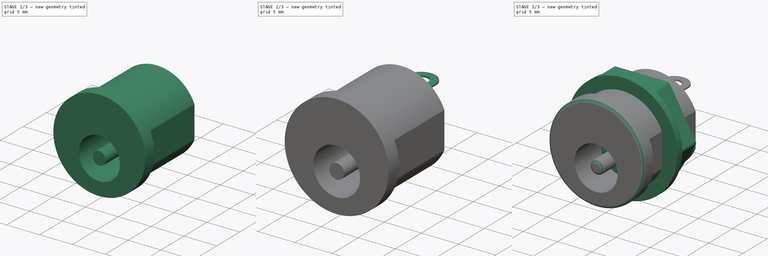
[diagram: build sequence overview — one tinted view per stage of 3, left to right]
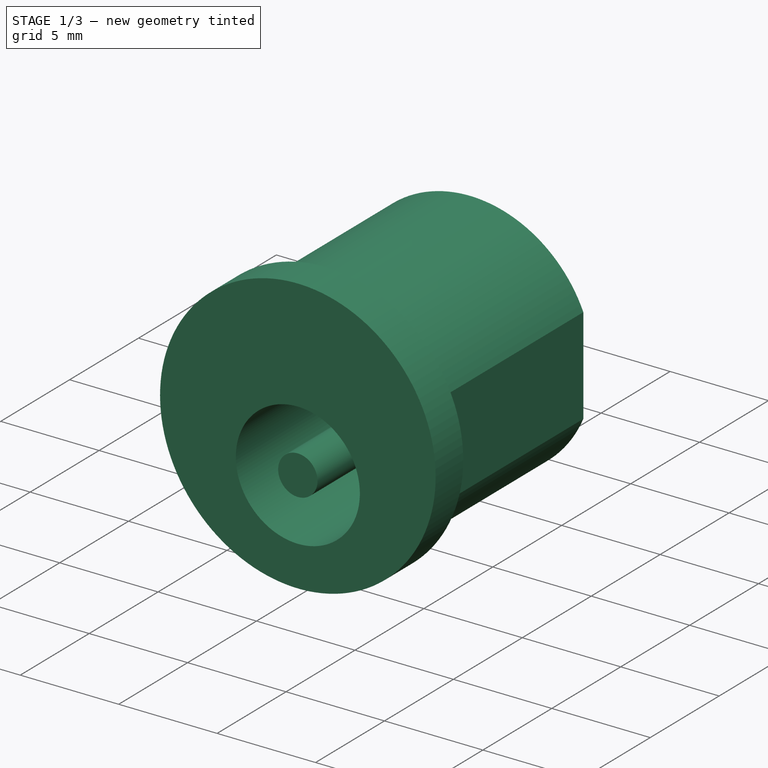
[diagram: stage 1 of 3 — iso view after this stage's code; geometry added in this stage tinted green]
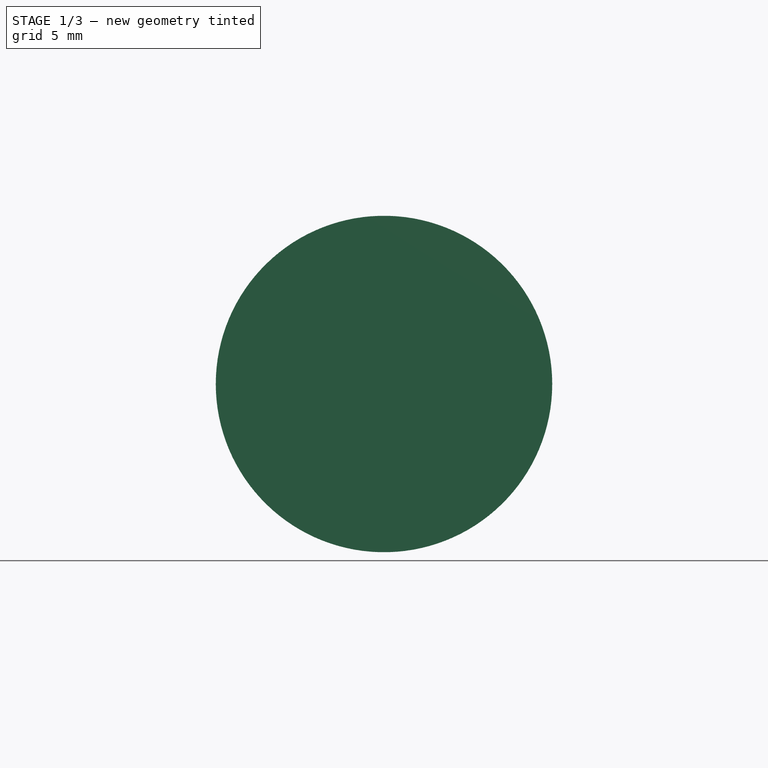
[diagram: stage 1 of 3 — front view after this stage's code; geometry added in this stage tinted green]
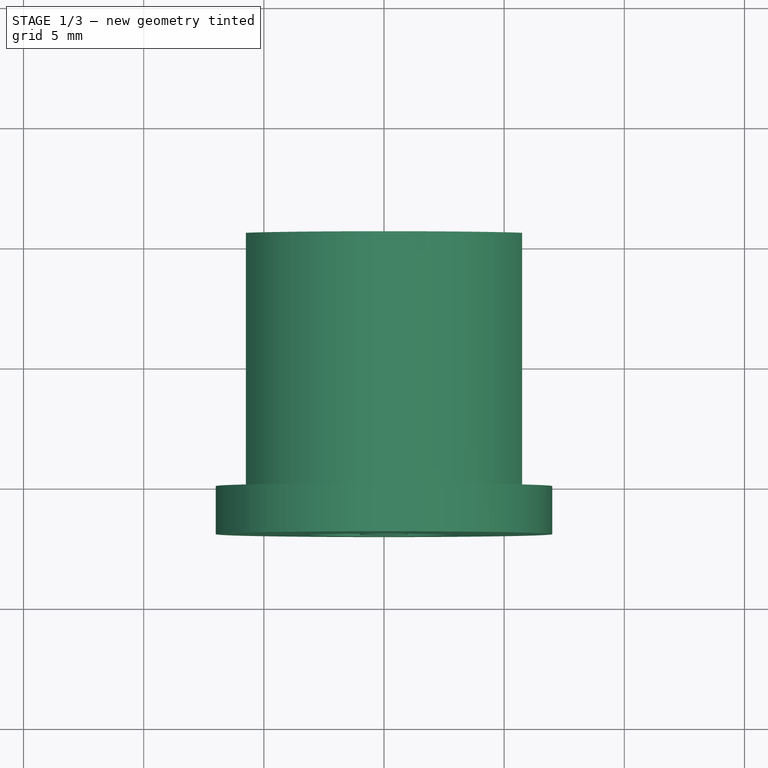
[diagram: stage 1 of 3 — top view after this stage's code; geometry added in this stage tinted green]
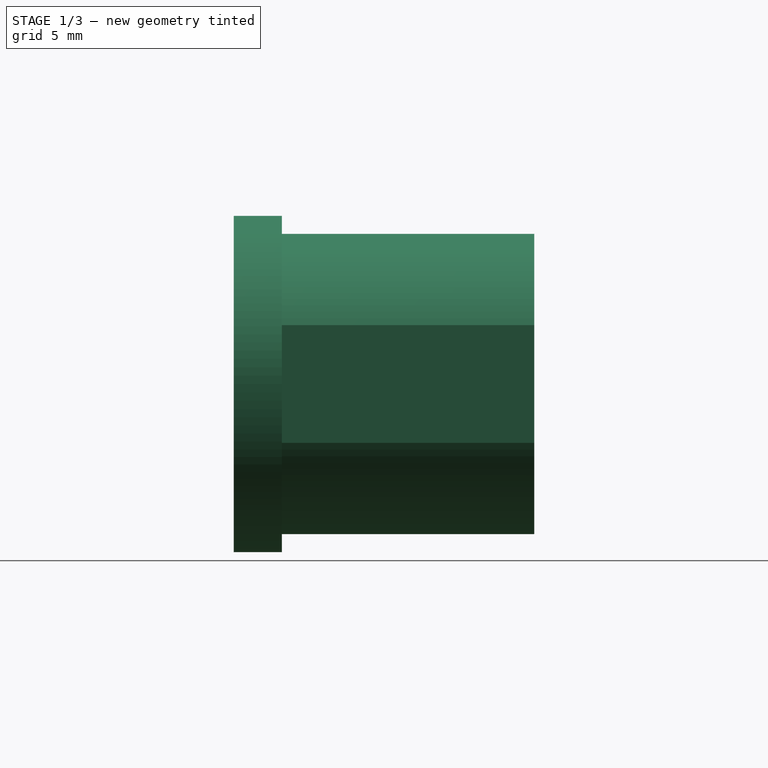
[diagram: stage 1 of 3 — right view after this stage's code; geometry added in this stage tinted green]
FCSTD DOCUMENT  (FreeCAD 0.18R4 (GitTag))
Label: DC Power Jack geschraubt
License: All rights reserved
LicenseURL: http://en.wikipedia.org/wiki/All_rights_reserved
objects: Sketcher::SketchObject×6, PartDesign::Pad×5, PartDesign::CoordinateSystem×1, PartDesign::Pocket×1, PartDesign::LinearPattern×1, PartDesign::Plane×1, PartDesign::Fillet×1, PartDesign::Body×1
note: 23 computed .brp shape members not serialized (recipe doc carries the construction recipe); baked Part::Feature solids carry a one-line shape summary decoded from their .brp

FEATURE [Sketcher::SketchObject] Sketch
  MapMode = 5
  Placement = pos=(0,0,0) rot=(1,0,0;1.5708rad)
  Support = -> [XZ_Plane]
  sketch-geometry (4):
    g0: LineSegment StartX=5.75 StartY=-2.44949 StartZ=0 EndX=5.75 EndY=2.44949 EndZ=0
    g1: ArcOfCircle CenterX=0 CenterY=0 CenterZ=0 NormalX=0 NormalY=0 NormalZ=1 AngleXU=0 Radius=6.25 StartAngle=0.402716 EndAngle=2.73888
    g2: LineSegment StartX=-5.75 StartY=2.44949 StartZ=0 EndX=-5.75 EndY=-2.44949 EndZ=0
    g3: ArcOfCircle CenterX=0 CenterY=0 CenterZ=0 NormalX=0 NormalY=0 NormalZ=1 AngleXU=0 Radius=6.25 StartAngle=3.54431 EndAngle=5.88047
  constraints (11):
    c: Coincident(g3,g0)
    c: Coincident(g3,g1)
    c: Coincident(g3,g-1)
    c: Coincident(g2,g3)
    c: Coincident(g1,g0)
    c: Vertical(g2)
    c: Vertical(g0)
    c: Coincident(g1,g2)
    c: Symmetric(g0,g2,g1)
    c: Radius(g1) = 6.25
    c: DistanceX(g1,g0) = 11.5
FEATURE [PartDesign::Pad] Pad  label="Zylinder"
  Length = 10.5
  Length2 = 100
  Placement = pos=(0,0,0) rot=(1,0,0;1.5708rad)
  Profile = -> Sketch
  Reversed = true
  Type = 0
FEATURE [PartDesign::CoordinateSystem] Local_CS
  AttacherType = Attacher::AttachEngine3D
  MapMode = 5
  Placement = pos=(0,0,0) rot=(1,0,0;1.5708rad)
  Support = -> [Pad]
FEATURE [Sketcher::SketchObject] Sketch001
  MapMode = 5
  Placement = pos=(0,0,0) rot=(1,0,0;1.5708rad)
  Support = -> [Pad]
  sketch-geometry (1):
    g0: Circle CenterX=0 CenterY=0 CenterZ=0 NormalX=0 NormalY=0 NormalZ=1 AngleXU=0 Radius=7
  constraints (2):
    c: Radius(g0) = 7
    c: Coincident(g0,g-1)
FEATURE [PartDesign::Pad] Pad001  label="Front"
  BaseFeature = -> Pad
  Length = 2
  Length2 = 100
  Placement = pos=(0,0,0) rot=(1,0,0;1.5708rad)
  Profile = -> Sketch001
  Type = 0
FEATURE [Sketcher::SketchObject] Sketch002
  MapMode = 5
  Placement = pos=(0,-2,2e-15) rot=(1,0,0;1.5708rad)
  Support = -> [Pad001]
  sketch-geometry (2):
    g0: Circle CenterX=0 CenterY=-1.8 CenterZ=0 NormalX=0 NormalY=0 NormalZ=1 AngleXU=0 Radius=1
    g1: Circle CenterX=0 CenterY=-1.8 CenterZ=0 NormalX=0 NormalY=0 NormalZ=1 AngleXU=0 Radius=3.15
  constraints (5):
    c: Radius(g0) = 1
    c: Radius(g1) = 3.15
    c: Coincident(g0,g1)
    c: PointOnObject(g0,g-2)
    c: DistanceY(g0,g-1) = 1.8
FEATURE [PartDesign::Pocket] Pocket
  BaseFeature = -> Pad001
  Length = 10
  Length2 = 100
  Placement = pos=(0,0,0) rot=(1,0,0;1.5708rad)
  Profile = -> Sketch002
  Type = 0
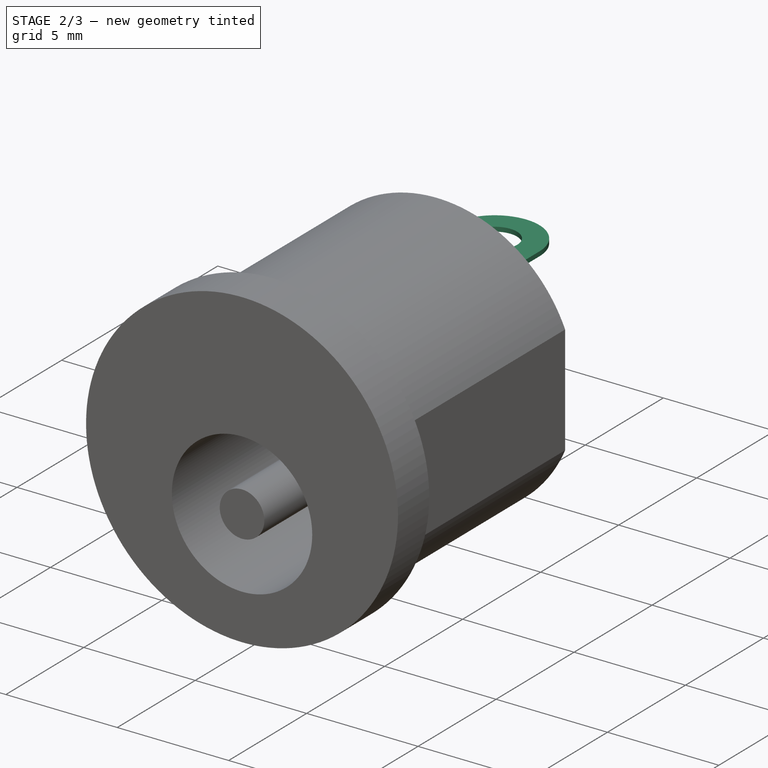
[diagram: stage 2 of 3 — iso view after this stage's code; geometry added in this stage tinted green]
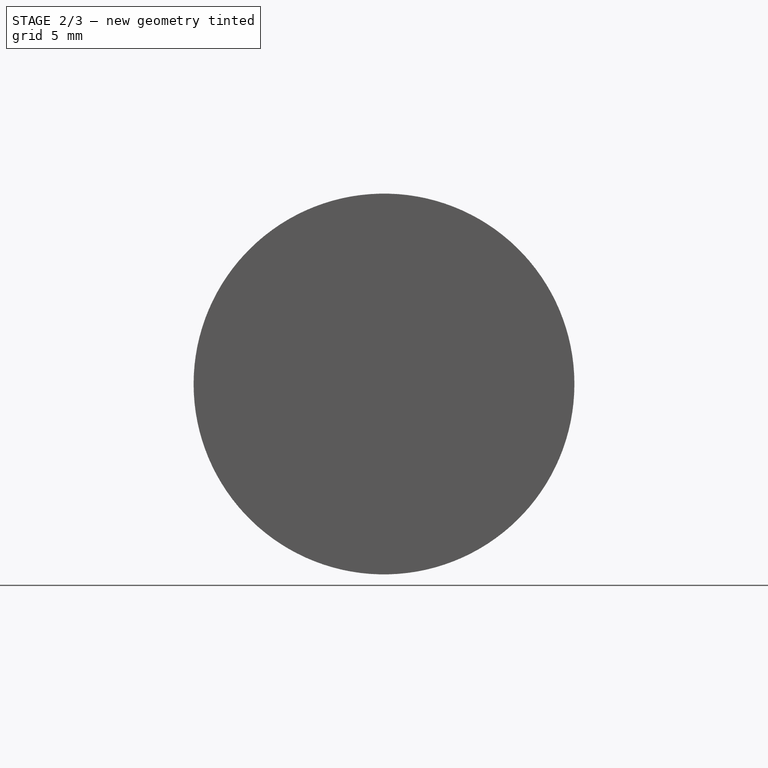
[diagram: stage 2 of 3 — front view after this stage's code; geometry added in this stage tinted green]
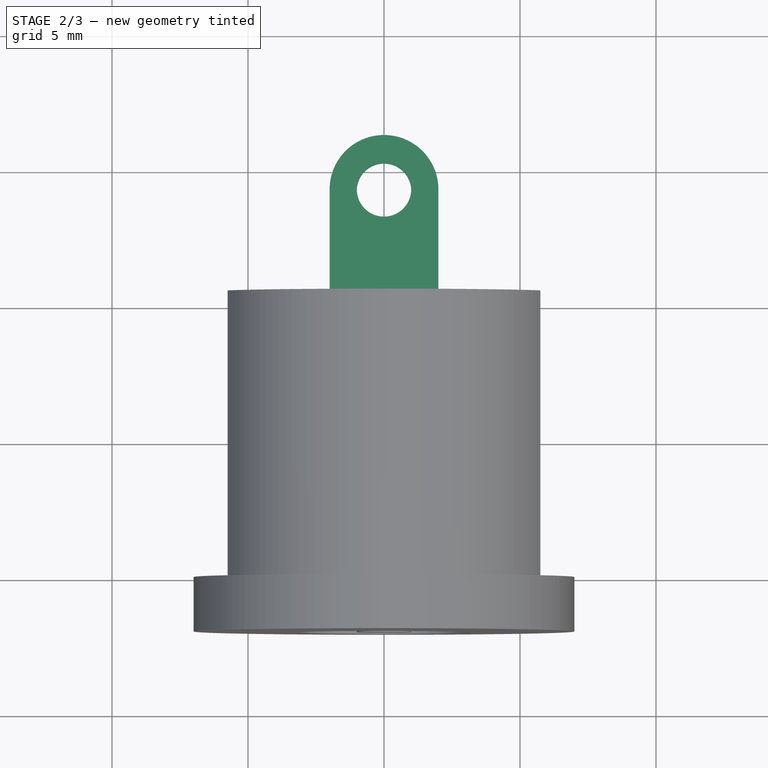
[diagram: stage 2 of 3 — top view after this stage's code; geometry added in this stage tinted green]
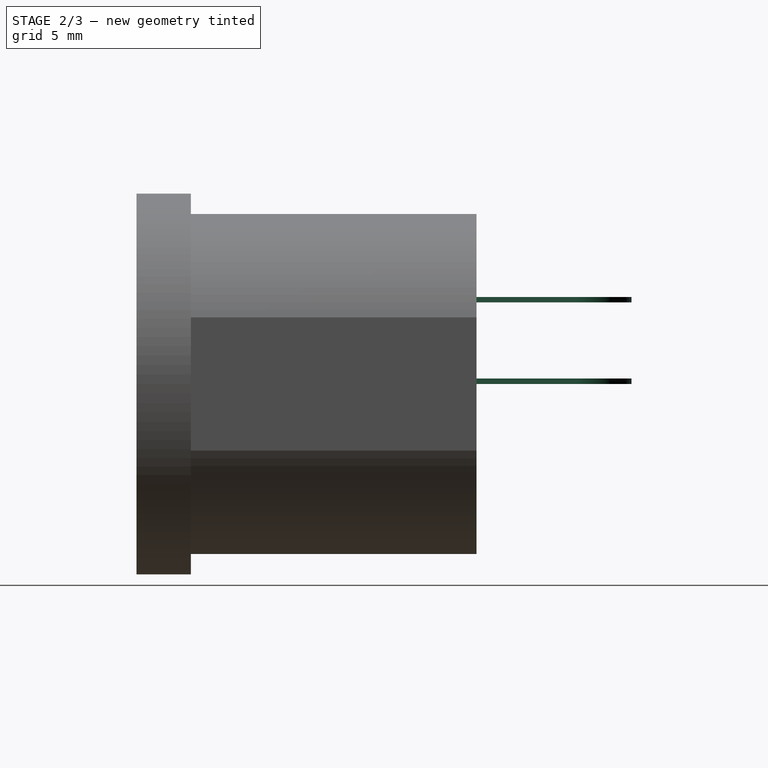
[diagram: stage 2 of 3 — right view after this stage's code; geometry added in this stage tinted green]
FEATURE [Sketcher::SketchObject] Sketch004
  MapMode = 5
  Support = -> [XY_Plane]
  sketch-geometry (6):
    g0: LineSegment StartX=-2 StartY=10.5 StartZ=0 EndX=-2 EndY=14.2 EndZ=0
    g1: ArcOfCircle CenterX=0 CenterY=14.2 CenterZ=0 NormalX=0 NormalY=0 NormalZ=1 AngleXU=0 Radius=2 StartAngle=1.5708 EndAngle=3.14159
    g2: ArcOfCircle CenterX=0 CenterY=14.2 CenterZ=0 NormalX=0 NormalY=0 NormalZ=1 AngleXU=0 Radius=2 StartAngle=1.2839e-12 EndAngle=1.5708
    g3: LineSegment StartX=2 StartY=14.2 StartZ=0 EndX=2 EndY=10.5 EndZ=0
    g4: LineSegment StartX=2 StartY=10.5 StartZ=0 EndX=-2 EndY=10.5 EndZ=0
    g5: Circle CenterX=0 CenterY=14.2 CenterZ=0 NormalX=0 NormalY=0 NormalZ=1 AngleXU=0 Radius=1
  constraints (17):
    c: Tangent(g0,g1) = 1.5708
    c: Tangent(g1,g2) = -1.5708
    c: Coincident(g3,g4)
    c: Coincident(g4,g0)
    c: Coincident(g1,g2)
    c: PointOnObject(g1,g-2)
    c: Vertical(g0)
    c: Vertical(g3)
    c: Horizontal(g4)
    c: PointOnObject(g1,g-2)
    c: DistanceY(g3,g1) = 5.7
    c: DistanceY(g-1,g3) = 10.5
    c: DistanceX(g4,g4) = 4
    c: Coincident(g5,g1)
    c: Radius(g5) = 1
    c: Coincident(g2,g3)
    c: Horizontal(g2,g0)
FEATURE [PartDesign::Pad] Pad002  label="Lötöse"
  BaseFeature = -> Pocket
  Length = 0.2
  Length2 = 100
  Placement = pos=(0,0,0) rot=(1,0,0;1.5708rad)
  Profile = -> Sketch004
  Type = 0
FEATURE [PartDesign::LinearPattern] LinearPattern
  BaseFeature = -> Pad002
  Direction = -> Sketch004 [N_Axis]
  Length = 3
  Occurrences = 2
  Originals = -> [Pad002]
  Placement = pos=(0,0,0) rot=(1,0,0;1.5708rad)
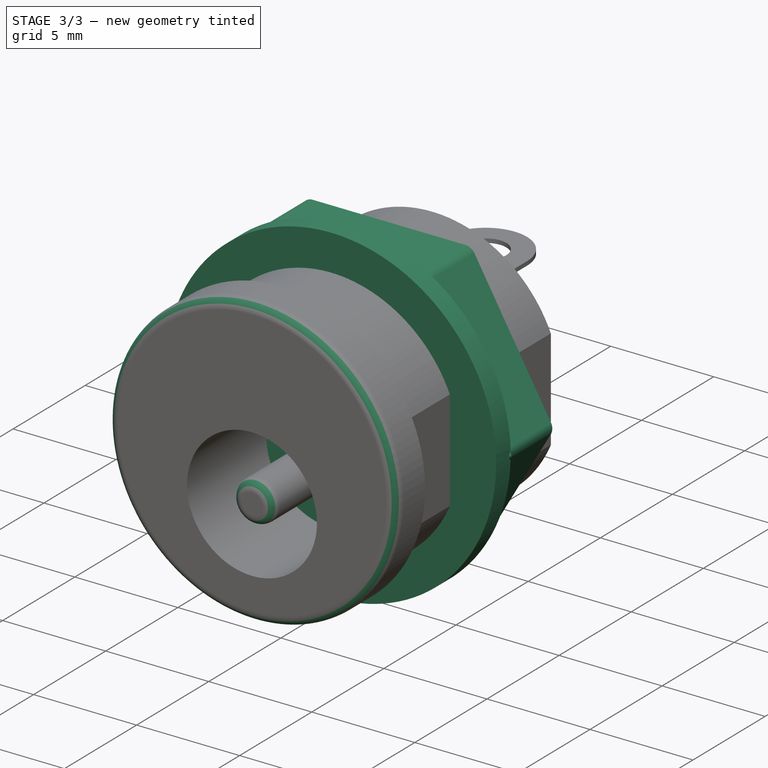
[diagram: stage 3 of 3 — iso view after this stage's code; geometry added in this stage tinted green]
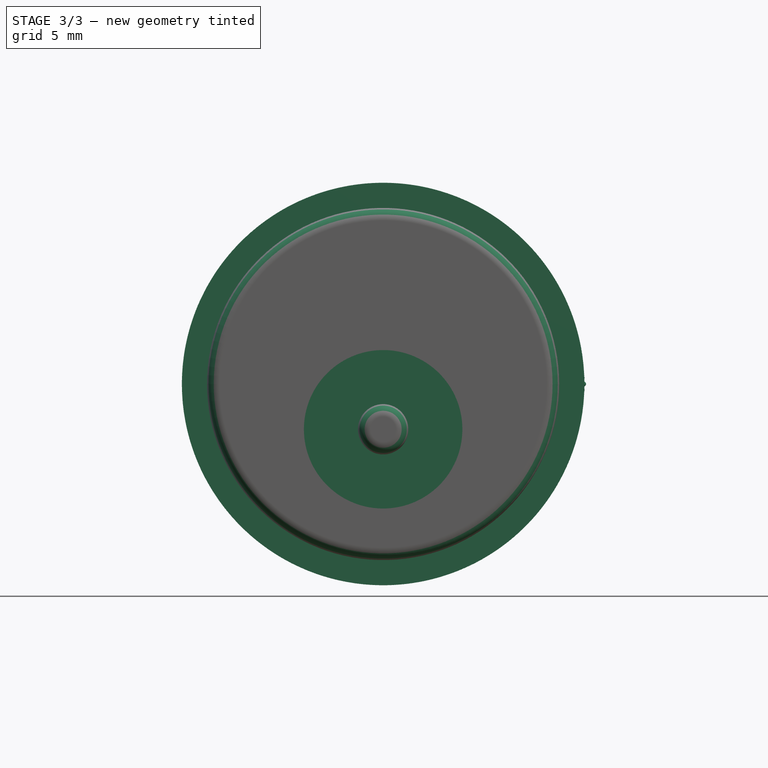
[diagram: stage 3 of 3 — front view after this stage's code; geometry added in this stage tinted green]
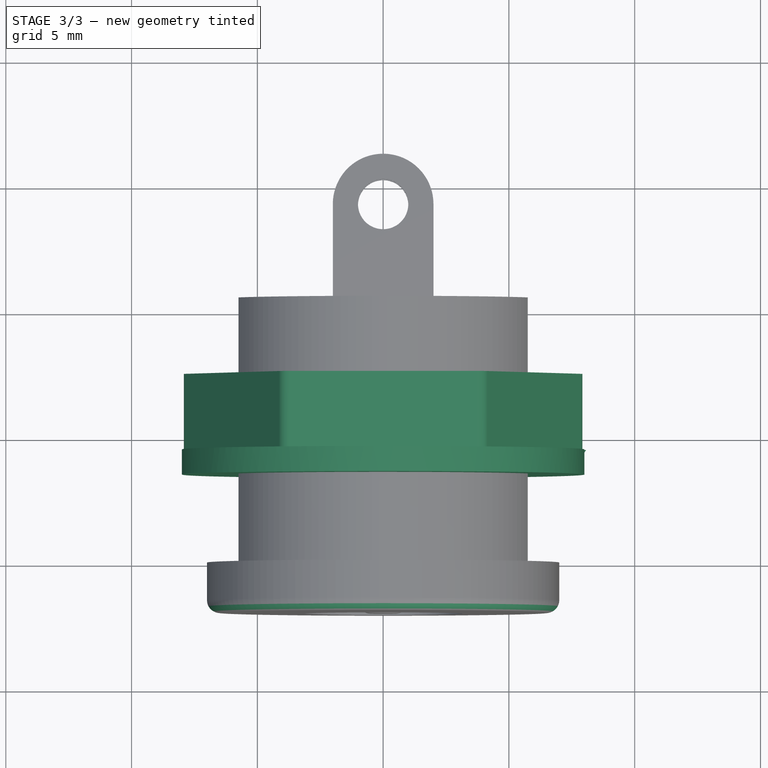
[diagram: stage 3 of 3 — top view after this stage's code; geometry added in this stage tinted green]
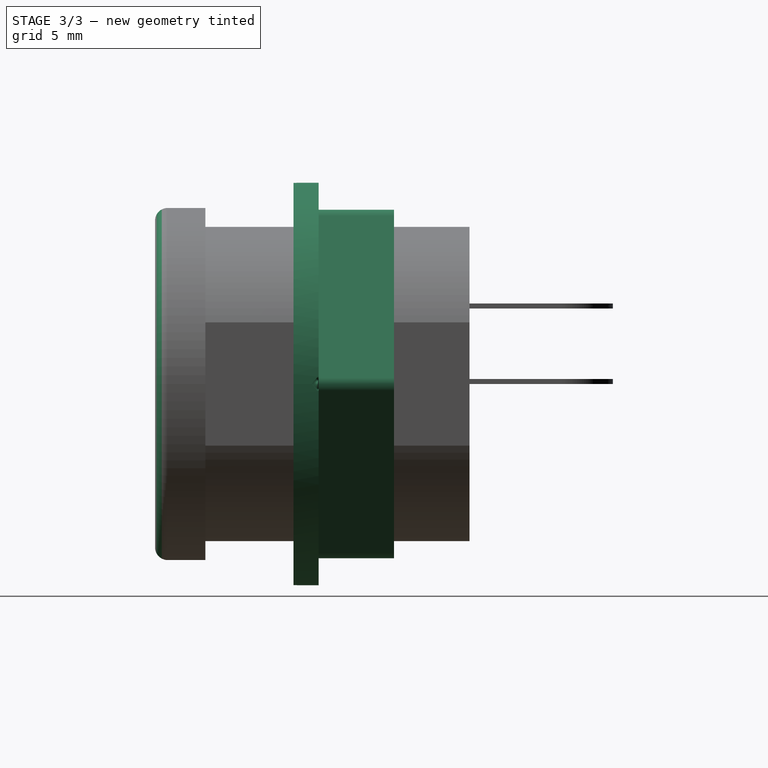
[diagram: stage 3 of 3 — right view after this stage's code; geometry added in this stage tinted green]
FEATURE [PartDesign::Plane] DatumPlane
  AttachmentOffset = pos=(0,0,-3) rot=(0,0,1;0rad)
  Length = 24
  MapMode = 5
  Placement = pos=(0,7.5,-4.8e-15) rot=(-1,0,0;1.5708rad)
  ResizeMode = 0
  Support = -> [LinearPattern]
  Width = 24
FEATURE [Sketcher::SketchObject] Sketch005
  MapMode = 5
  Placement = pos=(0,7.5,-4.8e-15) rot=(-1,0,0;1.5708rad)
  Support = -> [DatumPlane]
  expr: Constraints[18] = 12.5 / 2
  sketch-geometry (8):
    g0: Circle CenterX=0 CenterY=0 CenterZ=0 NormalX=0 NormalY=0 NormalZ=1 AngleXU=0 Radius=6.25
    g1: LineSegment StartX=4 StartY=-6.9282 StartZ=0 EndX=8 EndY=-1.13731e-11 EndZ=0
    g2: LineSegment StartX=8 StartY=-1.13731e-11 StartZ=0 EndX=4 EndY=6.9282 EndZ=0
    g3: LineSegment StartX=4 StartY=6.9282 StartZ=0 EndX=-4 EndY=6.9282 EndZ=0
    g4: LineSegment StartX=-4 StartY=6.9282 StartZ=0 EndX=-8 EndY=-6.7004e-12 EndZ=0
    g5: LineSegment StartX=-8 StartY=-6.7005e-12 StartZ=0 EndX=-4 EndY=-6.9282 EndZ=0
    g6: LineSegment StartX=-4 StartY=-6.9282 StartZ=0 EndX=4 EndY=-6.9282 EndZ=0
    g7: Circle [constr] CenterX=0 CenterY=0 CenterZ=0 NormalX=0 NormalY=0 NormalZ=1 AngleXU=0 Radius=8
  constraints (18):
    c: Coincident(g1,g2)
    c: Coincident(g2,g3)
    c: Coincident(g3,g4)
    c: Coincident(g4,g5)
    c: Coincident(g5,g6)
    c: Coincident(g6,g1)
    c: Equal(g1, g2-g6) x5
    c: PointOnObject(g1,g7)
    c: PointOnObject(g2,g7)
    c: PointOnObject(g3,g7)
    c: PointOnObject(g4,g7)
    c: PointOnObject(g5,g7)
    c: PointOnObject(g6,g7)
    c: Radius(g7) = 8
    c: Radius(g0) = 6.25
    c: Coincident(g7,g0)
    c: Coincident(g7,g-1)
    c: Horizontal(g6)
FEATURE [PartDesign::Pad] Pad003  label="Mutter"
  BaseFeature = -> LinearPattern
  Length = 3
  Length2 = 100
  Placement = pos=(0,0,0) rot=(1,0,0;1.5708rad)
  Profile = -> Sketch005
  Reversed = true
  Type = 0
FEATURE [Sketcher::SketchObject] Sketch006
  MapMode = 5
  Placement = pos=(0,4.5,-3.4e-15) rot=(1,0,0;1.5708rad)
  Support = -> [Pad003]
  sketch-geometry (1):
    g0: Circle CenterX=0 CenterY=0 CenterZ=0 NormalX=0 NormalY=0 NormalZ=1 AngleXU=0 Radius=8
  constraints (2):
    c: Coincident(g0,g-1)
    c: Radius(g0) = 8
FEATURE [PartDesign::Pad] Pad004  label="Auflage"
  BaseFeature = -> Pad003
  Length = 1
  Length2 = 100
  Placement = pos=(0,0,0) rot=(1,0,0;1.5708rad)
  Profile = -> Sketch006
  Type = 0
FEATURE [PartDesign::Fillet] Fillet
  Base = -> Pad004 [Edge28,Edge3,Edge36,Edge37,Edge39,Edge45,Edge43,Edge41]
  BaseFeature = -> Pad004
  Placement = pos=(0,0,0) rot=(1,0,0;1.5708rad)
  Radius = 0.5
FEATURE [PartDesign::Body] Body  label="DC Power Jack"
  Group = -> [Sketch,Pad,Local_CS,Sketch001,Pad001,Sketch002,Pocket,Sketch004,Pad002,LinearPattern,DatumPlane,Sketch005,Pad003,Sketch006,Pad004,Fillet]
  Origin = -> Origin
  Tip = -> Fillet
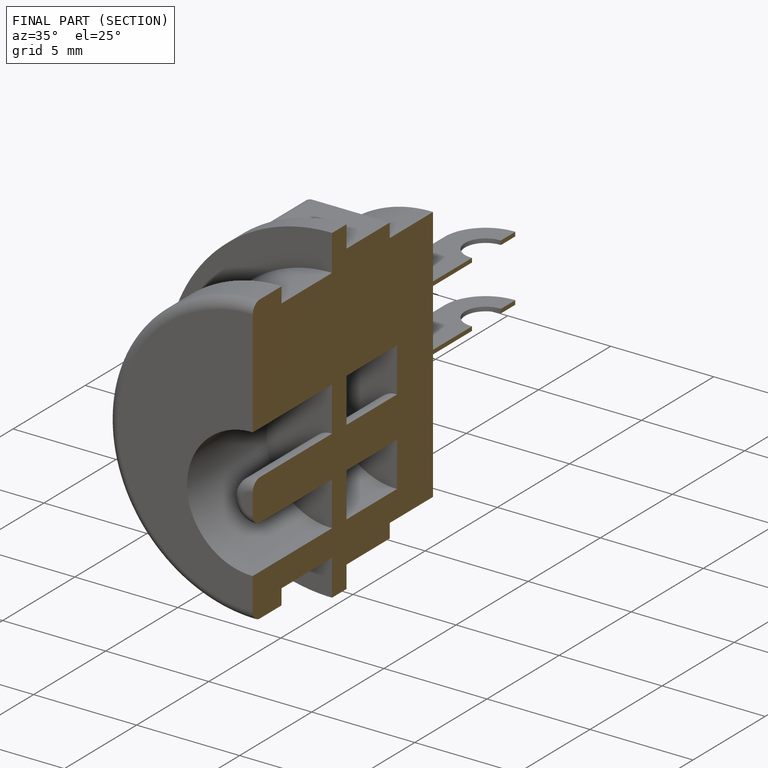
[diagram: finished part — half-section view (interior)]
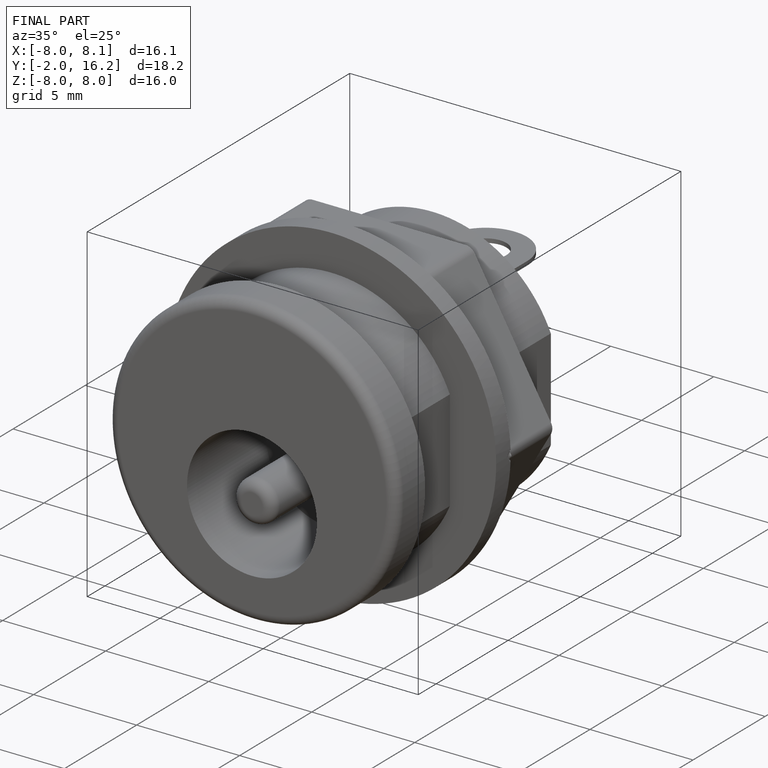
[diagram: finished part — iso view with bounding-box wireframe]
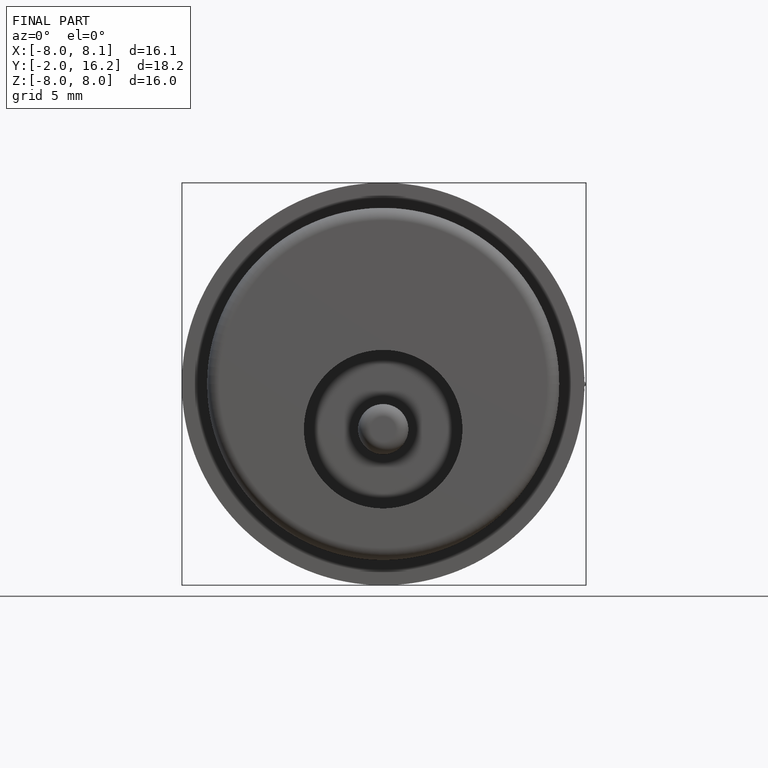
[diagram: finished part — front view with bounding-box wireframe]
